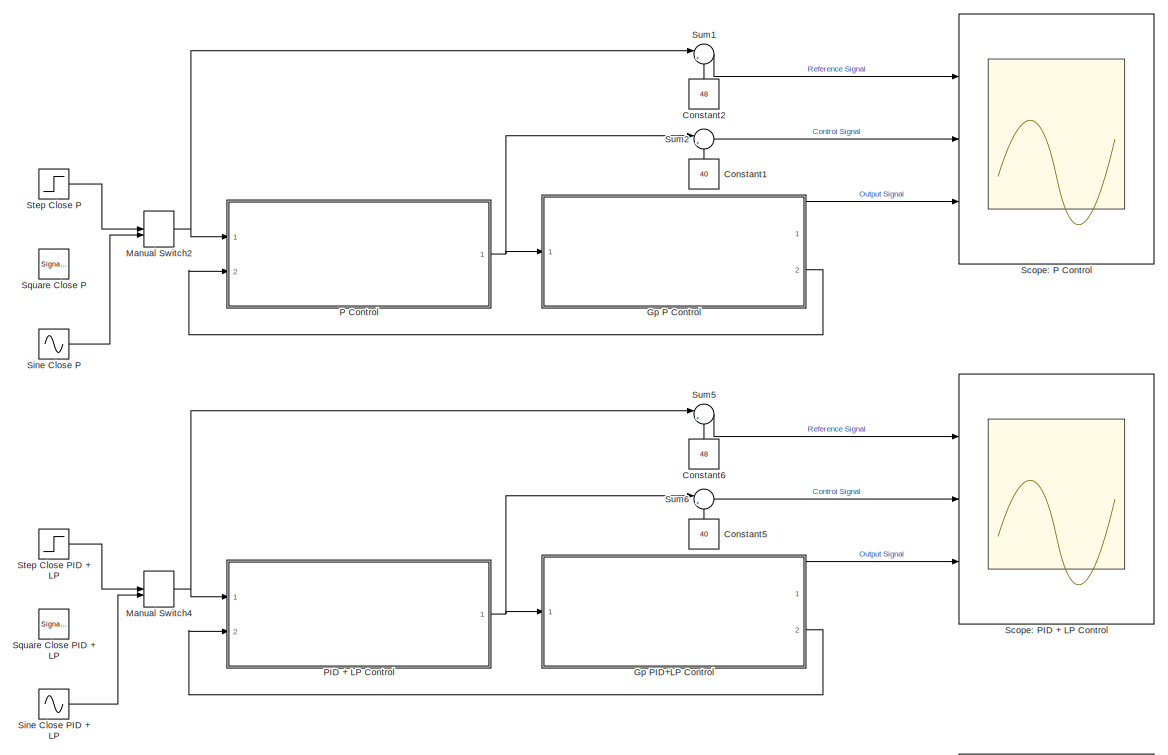
[diagram: root canvas - part 1/5, top left region]
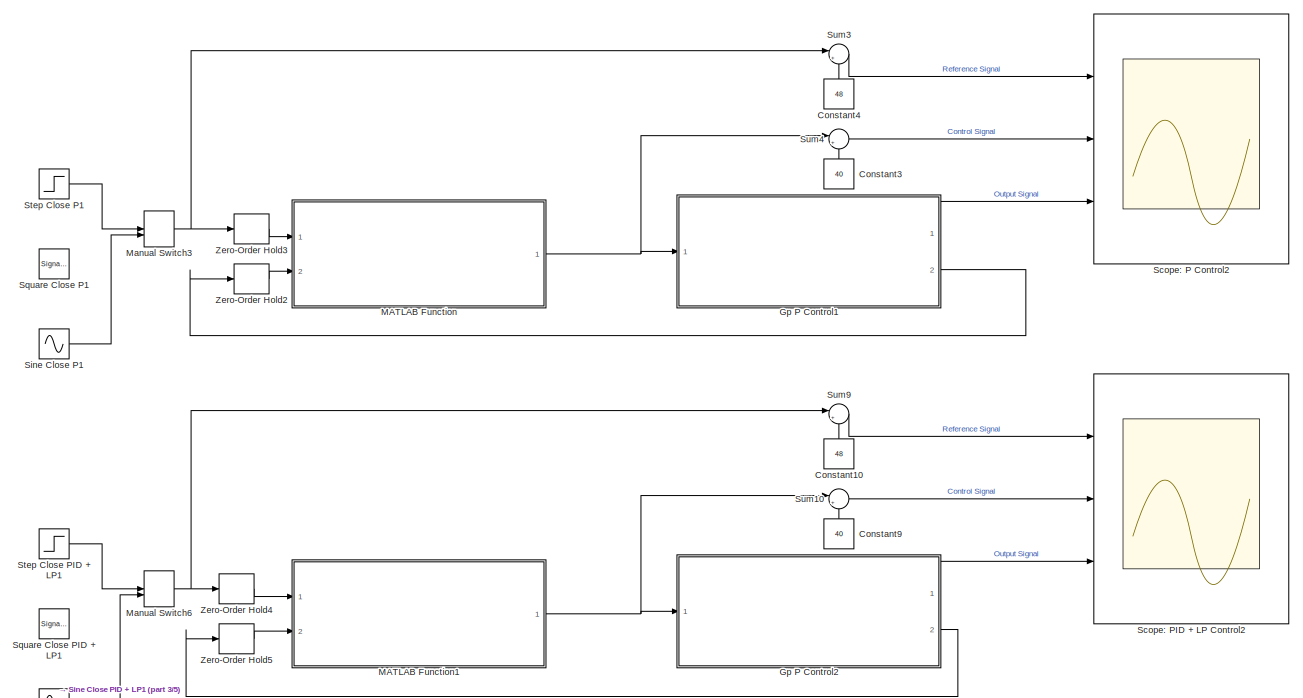
[diagram: root canvas - part 2/5, top right region]
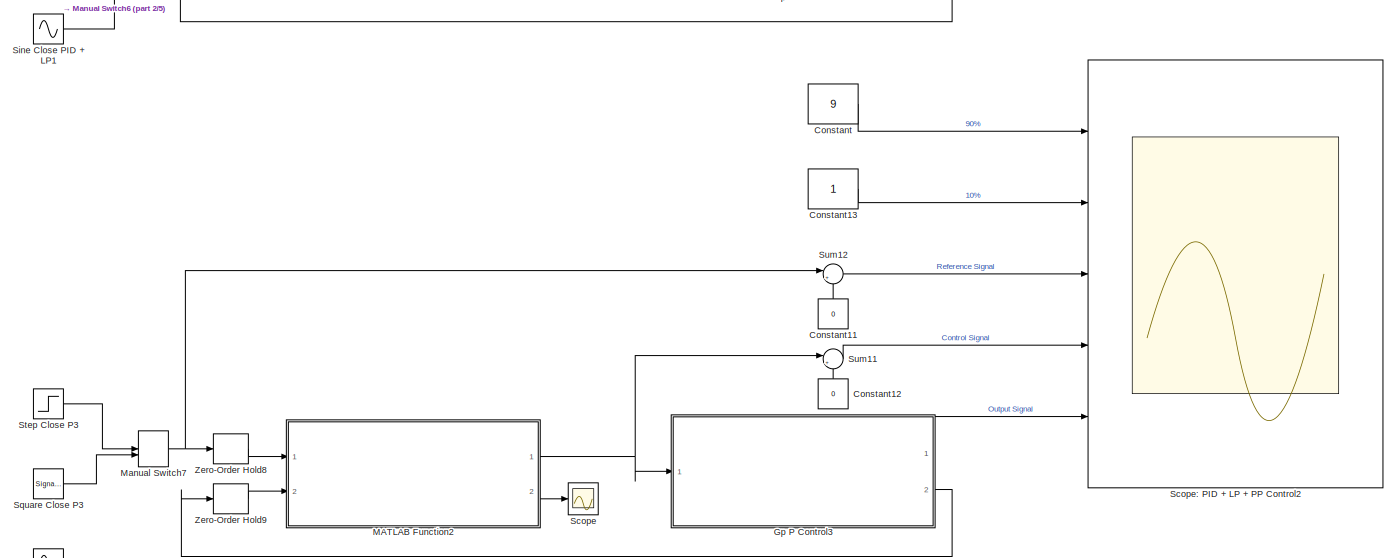
[diagram: root canvas - part 3/5, middle right region]
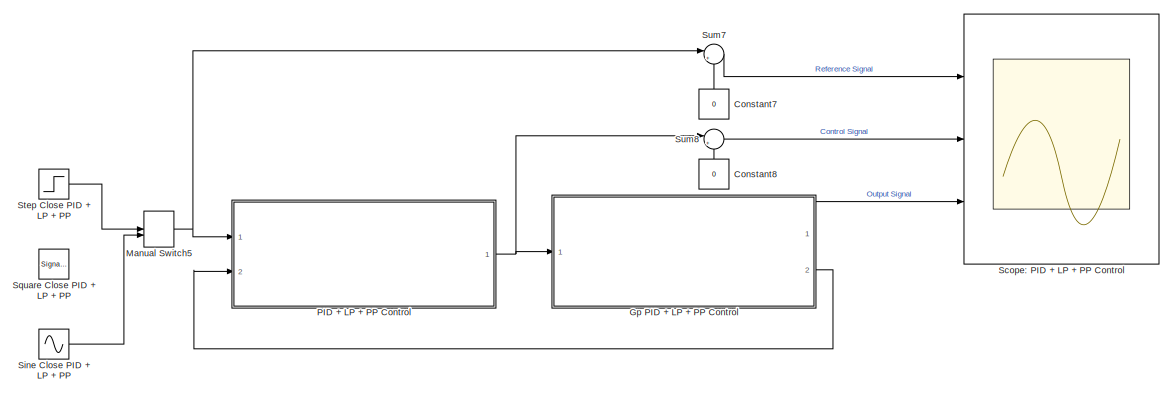
[diagram: root canvas - part 4/5, middle left region]
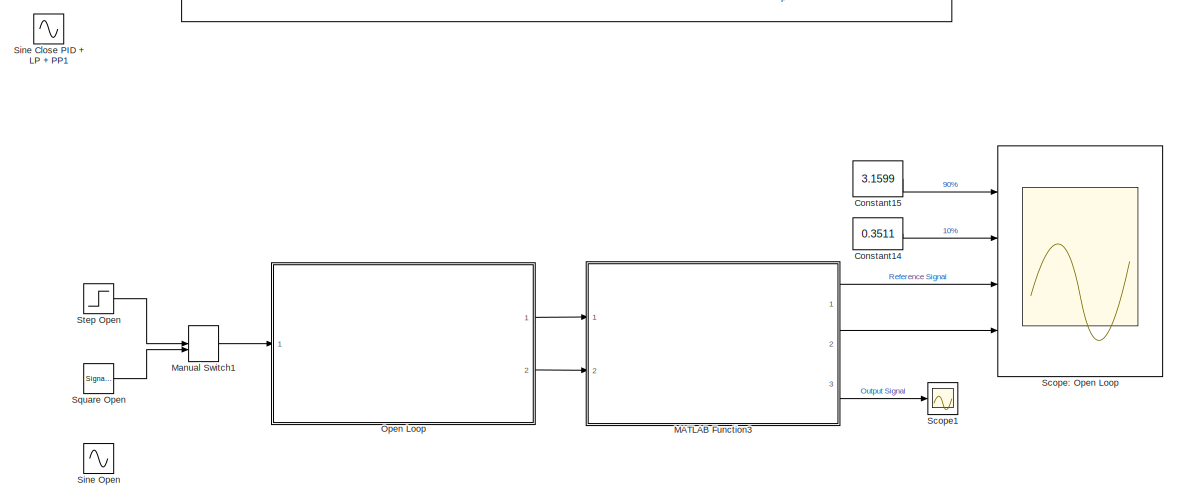
[diagram: root canvas - part 5/5, bottom right region]
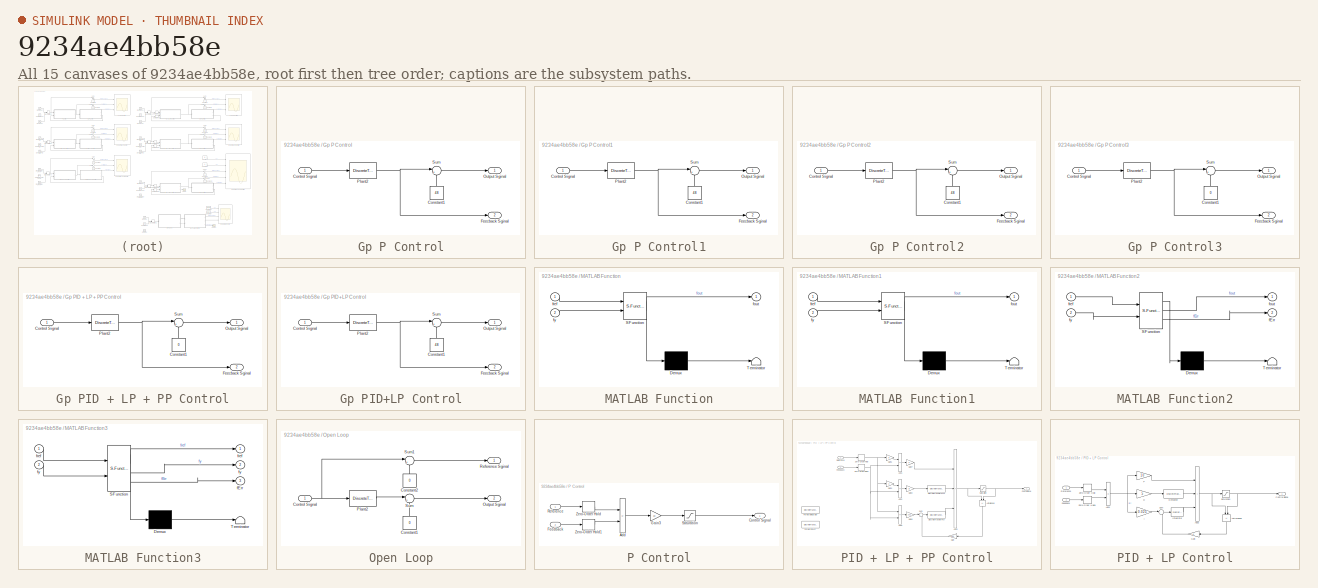
[diagram: thumbnail index - all 15 canvases of the model, root first then tree order]
MODEL slx_9234ae4bb58e
KIND model
CONFIG AbsTol = auto
CONFIG EnableMultiTasking = off
CONFIG FixedStep = auto
CONFIG MaxStep = auto
CONFIG MinStep = auto
CONFIG RelTol = 1e-3
CONFIG SampleTimeConstraint = Unconstrained
CONFIG SolverName = VariableStepAuto
CONFIG StartTime = 0.0
CONFIG StopTime = 3600
BLOCK [Constant] Constant
  Value = 9
BLOCK [Constant] Constant1
  NameLocation = right
  Value = 40
BLOCK [Constant] Constant10
  NameLocation = right
  Value = 48
BLOCK [Constant] Constant11
  NameLocation = right
  Value = 0
BLOCK [Constant] Constant12
  NameLocation = right
  Value = 0
BLOCK [Constant] Constant13
BLOCK [Constant] Constant14
  Value = 0.3511
BLOCK [Constant] Constant15
  Value = 3.1599
BLOCK [Constant] Constant2
  NameLocation = right
  Value = 48
BLOCK [Constant] Constant3
  NameLocation = right
  Value = 40
BLOCK [Constant] Constant4
  NameLocation = right
  Value = 48
BLOCK [Constant] Constant5
  NameLocation = right
  Value = 40
BLOCK [Constant] Constant6
  NameLocation = right
  Value = 48
BLOCK [Constant] Constant7
  NameLocation = right
  Value = 0
BLOCK [Constant] Constant8
  NameLocation = right
  Value = 0
BLOCK [Constant] Constant9
  NameLocation = right
  Value = 40
BLOCK [SubSystem] Gp P Control
  Ports = [1, 2]
  RequestExecContextInheritance = off
BLOCK [Constant] Gp P Control/Constant1
  NameLocation = right
  Value = 48
BLOCK [Inport] Gp P Control/Control Signal
  NameLocation = left
BLOCK [Outport] Gp P Control/Feecback Sginal
  NameLocation = right
  Port = 2
BLOCK [Outport] Gp P Control/Output Sginal
  NameLocation = right
BLOCK [DiscreteTransferFcn] Gp P Control/Plant2
  Denominator = A
  InputPortMap = u0
  Numerator = B
  Ports = [1, 1]
  SampleTime = 0.4
BLOCK [Sum] Gp P Control/Sum
  Inputs = |++
  Ports = [2, 1]
BLOCK [SubSystem] Gp P Control1
  Ports = [1, 2]
  RequestExecContextInheritance = off
BLOCK [Constant] Gp P Control1/Constant1
  NameLocation = right
  Value = 48
BLOCK [Inport] Gp P Control1/Control Signal
  NameLocation = left
BLOCK [Outport] Gp P Control1/Feecback Sginal
  NameLocation = right
  Port = 2
BLOCK [Outport] Gp P Control1/Output Sginal
  NameLocation = right
BLOCK [DiscreteTransferFcn] Gp P Control1/Plant2
  Denominator = A
  InputPortMap = u0
  Numerator = B
  Ports = [1, 1]
  SampleTime = 0.4
BLOCK [Sum] Gp P Control1/Sum
  Inputs = |++
  Ports = [2, 1]
BLOCK [SubSystem] Gp P Control2
  Ports = [1, 2]
  RequestExecContextInheritance = off
BLOCK [Constant] Gp P Control2/Constant1
  NameLocation = right
  Value = 48
BLOCK [Inport] Gp P Control2/Control Signal
  NameLocation = left
BLOCK [Outport] Gp P Control2/Feecback Sginal
  NameLocation = right
  Port = 2
BLOCK [Outport] Gp P Control2/Output Sginal
  NameLocation = right
BLOCK [DiscreteTransferFcn] Gp P Control2/Plant2
  Denominator = A
  InputPortMap = u0
  Numerator = B
  Ports = [1, 1]
  SampleTime = 0.4
BLOCK [Sum] Gp P Control2/Sum
  Inputs = |++
  Ports = [2, 1]
BLOCK [SubSystem] Gp P Control3
  Ports = [1, 2]
  RequestExecContextInheritance = off
BLOCK [Constant] Gp P Control3/Constant1
  NameLocation = right
  Value = 0
BLOCK [Inport] Gp P Control3/Control Signal
  NameLocation = left
BLOCK [Outport] Gp P Control3/Feecback Sginal
  NameLocation = right
  Port = 2
BLOCK [Outport] Gp P Control3/Output Sginal
  NameLocation = right
BLOCK [DiscreteTransferFcn] Gp P Control3/Plant2
  Denominator = A
  InputPortMap = u0
  Numerator = B
  Ports = [1, 1]
  SampleTime = 0.4
BLOCK [Sum] Gp P Control3/Sum
  Inputs = |++
  Ports = [2, 1]
BLOCK [SubSystem] Gp PID + LP + PP Control
  Ports = [1, 2]
  RequestExecContextInheritance = off
BLOCK [Constant] Gp PID + LP + PP Control/Constant1
  NameLocation = right
  Value = 0
BLOCK [Inport] Gp PID + LP + PP Control/Control Signal
  NameLocation = left
BLOCK [Outport] Gp PID + LP + PP Control/Feecback Sginal
  NameLocation = right
  Port = 2
BLOCK [Outport] Gp PID + LP + PP Control/Output Sginal
  NameLocation = right
BLOCK [DiscreteTransferFcn] Gp PID + LP + PP Control/Plant2
  Denominator = A
  InputPortMap = u0
  Numerator = B
  Ports = [1, 1]
  SampleTime = 0.4
BLOCK [Sum] Gp PID + LP + PP Control/Sum
  Inputs = |++
  Ports = [2, 1]
BLOCK [SubSystem] Gp PID+LP Control
  Ports = [1, 2]
  RequestExecContextInheritance = off
BLOCK [Constant] Gp PID+LP Control/Constant1
  NameLocation = right
  Value = 48
BLOCK [Inport] Gp PID+LP Control/Control Signal
  NameLocation = left
BLOCK [Outport] Gp PID+LP Control/Feecback Sginal
  NameLocation = right
  Port = 2
BLOCK [Outport] Gp PID+LP Control/Output Sginal
  NameLocation = right
BLOCK [DiscreteTransferFcn] Gp PID+LP Control/Plant2
  Denominator = A
  InputPortMap = u0
  Numerator = B
  Ports = [1, 1]
  SampleTime = 0.4
BLOCK [Sum] Gp PID+LP Control/Sum
  Inputs = |++
  Ports = [2, 1]
BLOCK [SubSystem] MATLAB Function
  ErrorFcn = Stateflow.Translate.translate
  PermitHierarchicalResolution = ExplicitOnly
  Ports = [2, 1]
  RequestExecContextInheritance = off
  SFBlockType = MATLAB Function
  TreatAsAtomicUnit = on
BLOCK [Demux] MATLAB Function/ Demux 
  Outputs = 1
  Ports = [1, 1]
BLOCK [S-Function] MATLAB Function/ SFunction 
  EnableBusSupport = on
  FunctionName = sf_sfun
  PortCounts = [2 2]
  Ports = [2, 2]
  SFcnIsStateOwnerBlock = off
  SFunctionDeploymentMode = off
  Tag = Stateflow S-Function 2
BLOCK [Terminator] MATLAB Function/ Terminator 
BLOCK [Outport] MATLAB Function/fout
BLOCK [Inport] MATLAB Function/fref
BLOCK [Inport] MATLAB Function/fy
  Port = 2
BLOCK [SubSystem] MATLAB Function1
  ErrorFcn = Stateflow.Translate.translate
  PermitHierarchicalResolution = ExplicitOnly
  Ports = [2, 1]
  RequestExecContextInheritance = off
  SFBlockType = MATLAB Function
  TreatAsAtomicUnit = on
BLOCK [Demux] MATLAB Function1/ Demux 
  Outputs = 1
  Ports = [1, 1]
BLOCK [S-Function] MATLAB Function1/ SFunction 
  EnableBusSupport = on
  FunctionName = sf_sfun
  PortCounts = [2 2]
  Ports = [2, 2]
  SFcnIsStateOwnerBlock = off
  SFunctionDeploymentMode = off
  Tag = Stateflow S-Function 1
BLOCK [Terminator] MATLAB Function1/ Terminator 
BLOCK [Outport] MATLAB Function1/fout
BLOCK [Inport] MATLAB Function1/fref
BLOCK [Inport] MATLAB Function1/fy
  Port = 2
BLOCK [SubSystem] MATLAB Function2
  ErrorFcn = Stateflow.Translate.translate
  PermitHierarchicalResolution = ExplicitOnly
  Ports = [2, 2]
  RequestExecContextInheritance = off
  SFBlockType = MATLAB Function
  TreatAsAtomicUnit = on
BLOCK [Demux] MATLAB Function2/ Demux 
  Outputs = 1
  Ports = [1, 1]
BLOCK [S-Function] MATLAB Function2/ SFunction 
  EnableBusSupport = on
  FunctionName = sf_sfun
  PortCounts = [2 3]
  Ports = [2, 3]
  SFcnIsStateOwnerBlock = off
  SFunctionDeploymentMode = off
  Tag = Stateflow S-Function 3
BLOCK [Terminator] MATLAB Function2/ Terminator 
BLOCK [Outport] MATLAB Function2/fErr
  Port = 2
BLOCK [Outport] MATLAB Function2/fout
BLOCK [Inport] MATLAB Function2/fref
BLOCK [Inport] MATLAB Function2/fy
  Port = 2
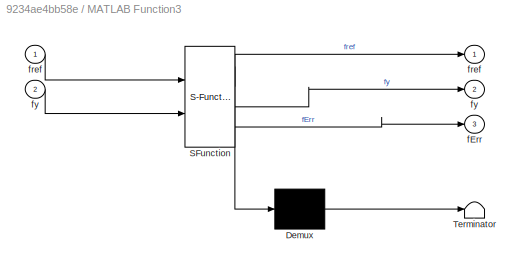
BLOCK [SubSystem] MATLAB Function3
  ErrorFcn = Stateflow.Translate.translate
  PermitHierarchicalResolution = ExplicitOnly
  Ports = [2, 3]
  RequestExecContextInheritance = off
  SFBlockType = MATLAB Function
  TreatAsAtomicUnit = on
BLOCK [Demux] MATLAB Function3/ Demux 
  Outputs = 1
  Ports = [1, 1]
BLOCK [S-Function] MATLAB Function3/ SFunction 
  EnableBusSupport = on
  FunctionName = sf_sfun
  PortCounts = [2 4]
  Ports = [2, 4]
  SFcnIsStateOwnerBlock = off
  SFunctionDeploymentMode = off
  Tag = Stateflow S-Function 4
BLOCK [Terminator] MATLAB Function3/ Terminator 
BLOCK [Outport] MATLAB Function3/fErr
  Port = 3
BLOCK [Outport] MATLAB Function3/fref
BLOCK [Inport] MATLAB Function3/fref 
BLOCK [Outport] MATLAB Function3/fy
  Port = 2
BLOCK [Inport] MATLAB Function3/fy 
  Port = 2
BLOCK [ManualSwitch] Manual Switch1
  CurrentSetting = 0
BLOCK [ManualSwitch] Manual Switch2
  CurrentSetting = 0
BLOCK [ManualSwitch] Manual Switch3
  CurrentSetting = 0
BLOCK [ManualSwitch] Manual Switch4
  CurrentSetting = 0
BLOCK [ManualSwitch] Manual Switch5
  CurrentSetting = 0
BLOCK [ManualSwitch] Manual Switch6
  CurrentSetting = 0
BLOCK [ManualSwitch] Manual Switch7
  CurrentSetting = 0
BLOCK [SubSystem] Open Loop
  Ports = [1, 2]
  RequestExecContextInheritance = off
BLOCK [Constant] Open Loop/Constant1
  NameLocation = right
  Value = 0
BLOCK [Constant] Open Loop/Constant2
  NameLocation = right
  Value = 0
BLOCK [Inport] Open Loop/Control Signal
  NameLocation = left
BLOCK [Outport] Open Loop/Output Sginal
  NameLocation = right
  Port = 2
BLOCK [DiscreteTransferFcn] Open Loop/Plant2
  Denominator = A
  InputPortMap = u0
  Numerator = B
  Ports = [1, 1]
  SampleTime = Ts
BLOCK [Outport] Open Loop/Reference Sginal
  NameLocation = right
BLOCK [Sum] Open Loop/Sum
  Inputs = |++
  Ports = [2, 1]
BLOCK [Sum] Open Loop/Sum1
  Inputs = |++
  Ports = [2, 1]
BLOCK [SubSystem] P Control
  Ports = [2, 1]
  RequestExecContextInheritance = off
BLOCK [Sum] P Control/Add
  IconShape = rectangular
  Inputs = +-
  Ports = [2, 1]
BLOCK [Outport] P Control/Control Signal
  NameLocation = right
BLOCK [Inport] P Control/Feedback
  NameLocation = left
  Port = 2
BLOCK [Gain] P Control/Gain3
  Gain = 10
BLOCK [Inport] P Control/Reference
  NameLocation = left
BLOCK [Saturate] P Control/Saturation
  LowerLimit = -40
  UpperLimit = 60
BLOCK [ZeroOrderHold] P Control/Zero-Order Hold
BLOCK [ZeroOrderHold] P Control/Zero-Order Hold1
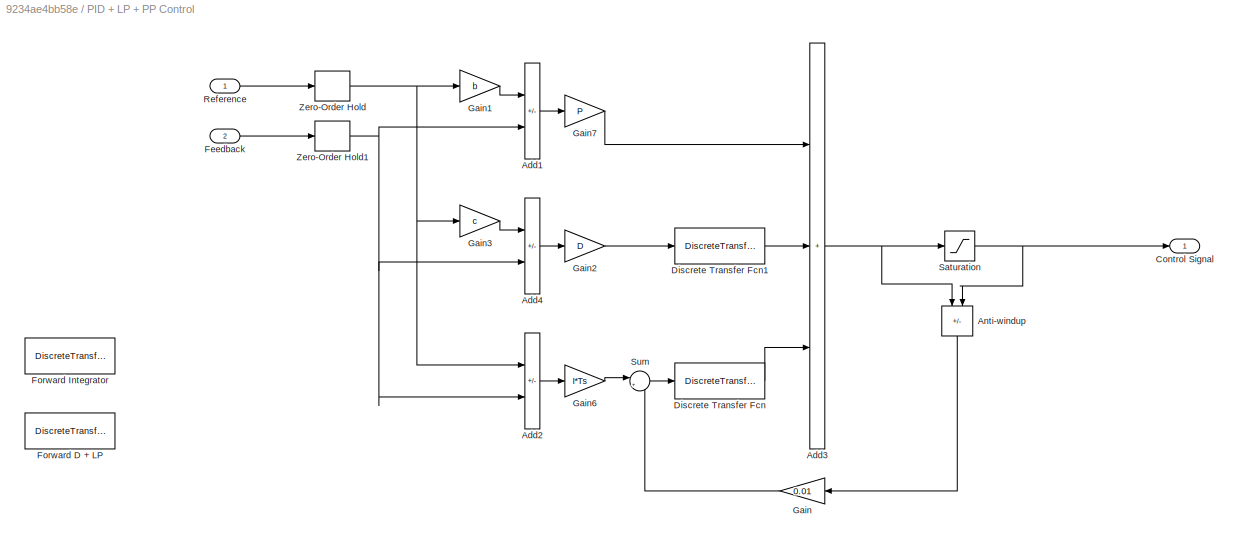
BLOCK [SubSystem] PID + LP + PP Control
  Ports = [2, 1]
  RequestExecContextInheritance = off
BLOCK [Sum] PID + LP + PP Control/Add1
  IconShape = rectangular
  Inputs = +-
  Ports = [2, 1]
BLOCK [Sum] PID + LP + PP Control/Add2
  IconShape = rectangular
  Inputs = +-
  Ports = [2, 1]
BLOCK [Sum] PID + LP + PP Control/Add3
  IconShape = rectangular
  Inputs = +++
  Ports = [3, 1]
BLOCK [Sum] PID + LP + PP Control/Add4
  IconShape = rectangular
  Inputs = +-
  Ports = [2, 1]
BLOCK [Sum] PID + LP + PP Control/Anti-windup
  IconShape = rectangular
  Inputs = -+
  NameLocation = right
  Ports = [2, 1]
BLOCK [Outport] PID + LP + PP Control/Control Signal
  NameLocation = right
BLOCK [DiscreteTransferFcn] PID + LP + PP Control/Discrete Transfer Fcn
  Denominator = [1 -1]
  InputPortMap = u0
  Numerator = [1 0]
  Ports = [1, 1]
  SampleTime = Ts
BLOCK [DiscreteTransferFcn] PID + LP + PP Control/Discrete Transfer Fcn1
  Denominator = [1+N -1]
  InputPortMap = u0
  Numerator = [N -N]
  Ports = [1, 1]
  SampleTime = Ts
BLOCK [Inport] PID + LP + PP Control/Feedback
  NameLocation = left
  Port = 2
BLOCK [DiscreteTransferFcn] PID + LP + PP Control/Forward D + LP
  Denominator = [1 N*Ts-1]
  InputPortMap = u0
  Numerator = [N -N]
  Ports = [1, 1]
  SampleTime = Ts
BLOCK [DiscreteTransferFcn] PID + LP + PP Control/Forward Integrator
  Denominator = [1 -1]
  InputPortMap = u0
  Ports = [1, 1]
  SampleTime = Ts
BLOCK [Gain] PID + LP + PP Control/Gain
  Gain = 0.01
BLOCK [Gain] PID + LP + PP Control/Gain1
  Gain = b
BLOCK [Gain] PID + LP + PP Control/Gain2
  Gain = D
BLOCK [Gain] PID + LP + PP Control/Gain3
  Gain = c
BLOCK [Gain] PID + LP + PP Control/Gain6
  Gain = I*Ts
BLOCK [Gain] PID + LP + PP Control/Gain7
  Gain = P
BLOCK [Inport] PID + LP + PP Control/Reference
  NameLocation = left
BLOCK [Saturate] PID + LP + PP Control/Saturation
  LowerLimit = -40
  UpperLimit = 60
BLOCK [Sum] PID + LP + PP Control/Sum
  Inputs = |++
  Ports = [2, 1]
BLOCK [ZeroOrderHold] PID + LP + PP Control/Zero-Order Hold
BLOCK [ZeroOrderHold] PID + LP + PP Control/Zero-Order Hold1
BLOCK [SubSystem] PID + LP Control
  Ports = [2, 1]
  RequestExecContextInheritance = off
BLOCK [Sum] PID + LP Control/Add1
  IconShape = rectangular
  Inputs = +-
  Ports = [2, 1]
BLOCK [Sum] PID + LP Control/Add2
  IconShape = rectangular
  Inputs = +++
  Ports = [3, 1]
BLOCK [Sum] PID + LP Control/Anti-windup
  IconShape = rectangular
  Inputs = -+
  NameLocation = right
  Ports = [2, 1]
BLOCK [Outport] PID + LP Control/Control Signal
  NameLocation = right
BLOCK [Gain] PID + LP Control/D
  Gain = 5
  NameLocation = top
BLOCK [DiscreteTransferFcn] PID + LP Control/Derivative
  Denominator = [1 0.6266]
  InputPortMap = u0
  Numerator = [1 -1]
  Ports = [1, 1]
  SampleTime = Ts
BLOCK [Inport] PID + LP Control/Feedback
  NameLocation = left
  Port = 2
BLOCK [Gain] PID + LP Control/Gain
BLOCK [Gain] PID + LP Control/I
  Gain = 0.025
  NameLocation = top
BLOCK [DiscreteTransferFcn] PID + LP Control/Integrator
  Denominator = [1 -1]
  InputPortMap = u0
  Numerator = [1 0]
  Ports = [1, 1]
  SampleTime = Ts
BLOCK [Gain] PID + LP Control/P
  Gain = 10
  NameLocation = top
BLOCK [Inport] PID + LP Control/Reference
  NameLocation = left
BLOCK [Saturate] PID + LP Control/Saturation
  LowerLimit = -40
  UpperLimit = 60
BLOCK [Sum] PID + LP Control/Sum
  Inputs = |++
  Ports = [2, 1]
BLOCK [ZeroOrderHold] PID + LP Control/Zero-Order Hold
BLOCK [ZeroOrderHold] PID + LP Control/Zero-Order Hold1
BLOCK [Scope] Scope
  Floating = off
  NumInputPorts = 1
  Ports = [1]
  ScopeSpecificationString = Simulink.scopes.TimeScopeBlockCfg('CurrentConfiguration', extmgr.ConfigurationSet(extmgr.Configuration('Core','General UI',true),extmgr.Configuration('Core','Source UI',true),extmgr.Configuration('Sources','WiredSimulink',true,'DataLoggingVariableName','ARMAX_Err','DataLogging',true,'DataLoggingSaveFormat','StructureWithTime'),extmgr.Configuration('Visuals','Time Domain',true,'SerializedDisplays',...<+1448ch>
BLOCK [Scope] Scope1
  Floating = off
  NumInputPorts = 1
  Ports = [1]
  ScopeSpecificationString = Simulink.scopes.TimeScopeBlockCfg('CurrentConfiguration', extmgr.ConfigurationSet(extmgr.Configuration('Core','General UI',true),extmgr.Configuration('Core','Source UI',true),extmgr.Configuration('Sources','WiredSimulink',true,'DataLoggingVariableName','ScopeData1'),extmgr.Configuration('Visuals','Time Domain',true,'SerializedDisplays',{struct('MinYLimReal','-16.88903','MaxYLimReal','16.88904','YL...<+1378ch>
BLOCK [Scope] Scope: Open Loop
  Floating = off
  NumInputPorts = 4
  Ports = [4]
  ScopeSpecificationString = Simulink.scopes.TimeScopeBlockCfg('CurrentConfiguration', extmgr.ConfigurationSet(extmgr.Configuration('Core','General UI',true),extmgr.Configuration('Core','Source UI',true),extmgr.Configuration('Sources','WiredSimulink',true,'DataLoggingVariableName','ScopeData1'),extmgr.Configuration('Visuals','Time Domain',true,'SerializedDisplays',{struct('MinYLimReal','-12.5','MaxYLimReal','12.5','YLabelReal...<+1555ch>
BLOCK [Scope] Scope: P Control
  Floating = off
  NumInputPorts = 3
  Ports = [3]
  ScopeSpecificationString = Simulink.scopes.TimeScopeBlockCfg('CurrentConfiguration', extmgr.ConfigurationSet(extmgr.Configuration('Core','General UI',true),extmgr.Configuration('Core','Source UI',true),extmgr.Configuration('Sources','WiredSimulink',true,'DataLoggingVariableName','ScopeData2'),extmgr.Configuration('Visuals','Time Domain',true,'SerializedDisplays',{struct('MinYLimReal','-10.79553','MaxYLimReal','97.1598','YLa...<+1549ch>
BLOCK [Scope] Scope: P Control2
  Floating = off
  NumInputPorts = 3
  Ports = [3]
  ScopeSpecificationString = Simulink.scopes.TimeScopeBlockCfg('CurrentConfiguration', extmgr.ConfigurationSet(extmgr.Configuration('Core','General UI',true),extmgr.Configuration('Core','Source UI',true),extmgr.Configuration('Sources','WiredSimulink',true,'DataLoggingVariableName','ScopeData1'),extmgr.Configuration('Visuals','Time Domain',true,'SerializedDisplays',{struct('MinYLimReal','-12.5','MaxYLimReal','112.5','YLabelRea...<+1534ch>
BLOCK [Scope] Scope: PID + LP + PP  Control2
  Floating = off
  NumInputPorts = 5
  Ports = [5]
  ScopeSpecificationString = Simulink.scopes.TimeScopeBlockCfg('CurrentConfiguration', extmgr.ConfigurationSet(extmgr.Configuration('Core','General UI',true,'FigureColor',[1 1 1]),extmgr.Configuration('Core','Source UI',true),extmgr.Configuration('Sources','WiredSimulink',true,'DataLoggingVariableName','ARMAX_Error','DataLogging',true,'DataLoggingSaveFormat','StructureWithTime'),extmgr.Configuration('Visuals','Time Domain',tr...<+2163ch>
BLOCK [Scope] Scope: PID + LP + PP Control
  Floating = off
  NumInputPorts = 3
  Ports = [3]
  ScopeSpecificationString = Simulink.scopes.TimeScopeBlockCfg('CurrentConfiguration', extmgr.ConfigurationSet(extmgr.Configuration('Core','General UI',true),extmgr.Configuration('Core','Source UI',true),extmgr.Configuration('Sources','WiredSimulink',true,'DataLoggingVariableName','ScopeData4'),extmgr.Configuration('Visuals','Time Domain',true,'SerializedDisplays',{struct('MinYLimReal','-36.9367','MaxYLimReal','36.97521','YLa...<+1552ch>
BLOCK [Scope] Scope: PID + LP Control
  Floating = off
  NumInputPorts = 3
  Ports = [3]
  ScopeSpecificationString = Simulink.scopes.TimeScopeBlockCfg('CurrentConfiguration', extmgr.ConfigurationSet(extmgr.Configuration('Core','General UI',true),extmgr.Configuration('Core','Source UI',true),extmgr.Configuration('Sources','WiredSimulink',true),extmgr.Configuration('Visuals','Time Domain',true,'SerializedDisplays',{struct('MinYLimReal','-12.5','MaxYLimReal','112.5','YLabelReal','','MinYLimMag','0.00000','MaxYLimMa...<+1495ch>
BLOCK [Scope] Scope: PID + LP Control2
  Floating = off
  NumInputPorts = 3
  Ports = [3]
  ScopeSpecificationString = Simulink.scopes.TimeScopeBlockCfg('CurrentConfiguration', extmgr.ConfigurationSet(extmgr.Configuration('Core','General UI',true),extmgr.Configuration('Core','Source UI',true),extmgr.Configuration('Sources','WiredSimulink',true,'DataLoggingVariableName','ScopeData2'),extmgr.Configuration('Visuals','Time Domain',true,'SerializedDisplays',{struct('MinYLimReal','-12.5','MaxYLimReal','112.5','YLabelRea...<+1534ch>
BLOCK [Sin] Sine Close P
  Amplitude = 20
  Frequency = 0.004
  Ports = [0, 1]
  SampleTime = 0
BLOCK [Sin] Sine Close P1
  Amplitude = 20
  Frequency = 0.004
  Ports = [0, 1]
  SampleTime = 0
BLOCK [Sin] Sine Close PID + LP
  Amplitude = 20
  Frequency = 0.007
  Ports = [0, 1]
  SampleTime = 0
BLOCK [Sin] Sine Close PID + LP + PP
  Amplitude = 10
  Frequency = 0.004
  Ports = [0, 1]
  SampleTime = 0
BLOCK [Sin] Sine Close PID + LP + PP1
  Amplitude = 10
  Frequency = 1/1800*6.28
  Ports = [0, 1]
  SampleTime = 0
BLOCK [Sin] Sine Close PID + LP1
  Amplitude = 20
  Frequency = 0.007
  Ports = [0, 1]
  SampleTime = 0
BLOCK [Sin] Sine Open
  Amplitude = 10
  Frequency = 1/1800*6.28
  Ports = [0, 1]
  SampleTime = 0
BLOCK [SignalGenerator] Square Close P
  Amplitude = 20
  Frequency = 1/900
  Ports = [0, 1]
  WaveForm = square
BLOCK [SignalGenerator] Square Close P1
  Amplitude = 20
  Frequency = 1/900
  Ports = [0, 1]
  WaveForm = square
BLOCK [SignalGenerator] Square Close P3
  Amplitude = 10
  Frequency = 1/1800
  Ports = [0, 1]
  WaveForm = square
BLOCK [SignalGenerator] Square Close PID + LP
  Amplitude = 20
  Frequency = 1/900
  Ports = [0, 1]
  WaveForm = square
BLOCK [SignalGenerator] Square Close PID + LP + PP
  Amplitude = 10
  Frequency = 1/1200
  Ports = [0, 1]
  WaveForm = square
BLOCK [SignalGenerator] Square Close PID + LP1
  Amplitude = 20
  Frequency = 1/900
  Ports = [0, 1]
  WaveForm = square
BLOCK [SignalGenerator] Square Open
  Amplitude = 10
  Frequency = 1/1800
  Ports = [0, 1]
  WaveForm = square
BLOCK [Step] Step Close P
  After = 20
  SampleTime = Ts
BLOCK [Step] Step Close P1
  After = 20
  SampleTime = Ts
BLOCK [Step] Step Close P3
  After = 10
BLOCK [Step] Step Close PID + LP
  After = 20
  SampleTime = Ts
BLOCK [Step] Step Close PID + LP + PP
  After = 20
  SampleTime = 0.4
BLOCK [Step] Step Close PID + LP1
  After = 20
  SampleTime = Ts
BLOCK [Step] Step Open
  After = 10
BLOCK [Sum] Sum1
  Inputs = |++
  Ports = [2, 1]
BLOCK [Sum] Sum10
  Inputs = |++
  Ports = [2, 1]
BLOCK [Sum] Sum11
  Inputs = |++
  Ports = [2, 1]
BLOCK [Sum] Sum12
  Inputs = |++
  Ports = [2, 1]
BLOCK [Sum] Sum2
  Inputs = |++
  Ports = [2, 1]
BLOCK [Sum] Sum3
  Inputs = |++
  Ports = [2, 1]
BLOCK [Sum] Sum4
  Inputs = |++
  Ports = [2, 1]
BLOCK [Sum] Sum5
  Inputs = |++
  Ports = [2, 1]
BLOCK [Sum] Sum6
  Inputs = |++
  Ports = [2, 1]
BLOCK [Sum] Sum7
  Inputs = |++
  Ports = [2, 1]
BLOCK [Sum] Sum8
  Inputs = |++
  Ports = [2, 1]
BLOCK [Sum] Sum9
  Inputs = |++
  Ports = [2, 1]
BLOCK [ZeroOrderHold] Zero-Order Hold2
BLOCK [ZeroOrderHold] Zero-Order Hold3
BLOCK [ZeroOrderHold] Zero-Order Hold4
BLOCK [ZeroOrderHold] Zero-Order Hold5
BLOCK [ZeroOrderHold] Zero-Order Hold8
BLOCK [ZeroOrderHold] Zero-Order Hold9
LINE Constant10:1 -> Sum9:2
LINE Constant11:1 -> Sum12:2
LINE Constant12:1 -> Sum11:2
LINE Constant13:1 -> Scope: PID + LP + PP  Control2:2
LINE Constant14:1 -> Scope: Open Loop:2
LINE Constant15:1 -> Scope: Open Loop:1
LINE Constant1:1 -> Sum2:2
LINE Constant2:1 -> Sum1:2
LINE Constant3:1 -> Sum4:2
LINE Constant4:1 -> Sum3:2
LINE Constant5:1 -> Sum6:2
LINE Constant6:1 -> Sum5:2
LINE Constant7:1 -> Sum7:2
LINE Constant8:1 -> Sum8:2
LINE Constant9:1 -> Sum10:2
LINE Constant:1 -> Scope: PID + LP + PP  Control2:1
LINE Gp P Control/Constant1:1 -> Gp P Control/Sum:2
LINE Gp P Control/Control Signal:1 -> Gp P Control/Plant2:1
NET Gp P Control/Plant2:1 -> Gp P Control/Feecback Sginal:1, Gp P Control/Sum:1
LINE Gp P Control/Sum:1 -> Gp P Control/Output Sginal:1
LINE Gp P Control1/Constant1:1 -> Gp P Control1/Sum:2
LINE Gp P Control1/Control Signal:1 -> Gp P Control1/Plant2:1
NET Gp P Control1/Plant2:1 -> Gp P Control1/Feecback Sginal:1, Gp P Control1/Sum:1
LINE Gp P Control1/Sum:1 -> Gp P Control1/Output Sginal:1
LINE Gp P Control1:1 -> Scope: P Control2:3
LINE Gp P Control1:2 -> Zero-Order Hold2:1
LINE Gp P Control2/Constant1:1 -> Gp P Control2/Sum:2
LINE Gp P Control2/Control Signal:1 -> Gp P Control2/Plant2:1
NET Gp P Control2/Plant2:1 -> Gp P Control2/Feecback Sginal:1, Gp P Control2/Sum:1
LINE Gp P Control2/Sum:1 -> Gp P Control2/Output Sginal:1
LINE Gp P Control2:1 -> Scope: PID + LP Control2:3
LINE Gp P Control2:2 -> Zero-Order Hold5:1
LINE Gp P Control3/Constant1:1 -> Gp P Control3/Sum:2
LINE Gp P Control3/Control Signal:1 -> Gp P Control3/Plant2:1
NET Gp P Control3/Plant2:1 -> Gp P Control3/Feecback Sginal:1, Gp P Control3/Sum:1
LINE Gp P Control3/Sum:1 -> Gp P Control3/Output Sginal:1
LINE Gp P Control3:1 -> Scope: PID + LP + PP  Control2:5
LINE Gp P Control3:2 -> Zero-Order Hold9:1
LINE Gp P Control:1 -> Scope: P Control:3
LINE Gp P Control:2 -> P Control:2
LINE Gp PID + LP + PP Control/Constant1:1 -> Gp PID + LP + PP Control/Sum:2
LINE Gp PID + LP + PP Control/Control Signal:1 -> Gp PID + LP + PP Control/Plant2:1
NET Gp PID + LP + PP Control/Plant2:1 -> Gp PID + LP + PP Control/Feecback Sginal:1, Gp PID + LP + PP Control/Sum:1
LINE Gp PID + LP + PP Control/Sum:1 -> Gp PID + LP + PP Control/Output Sginal:1
LINE Gp PID + LP + PP Control:1 -> Scope: PID + LP + PP Control:3
LINE Gp PID + LP + PP Control:2 -> PID + LP + PP Control:2
LINE Gp PID+LP Control/Constant1:1 -> Gp PID+LP Control/Sum:2
LINE Gp PID+LP Control/Control Signal:1 -> Gp PID+LP Control/Plant2:1
NET Gp PID+LP Control/Plant2:1 -> Gp PID+LP Control/Feecback Sginal:1, Gp PID+LP Control/Sum:1
LINE Gp PID+LP Control/Sum:1 -> Gp PID+LP Control/Output Sginal:1
LINE Gp PID+LP Control:1 -> Scope: PID + LP Control:3
LINE Gp PID+LP Control:2 -> PID + LP Control:2
NET MATLAB Function1:1 -> Gp P Control2:1, Sum10:1
NET MATLAB Function2:1 -> Gp P Control3:1, Sum11:1
LINE MATLAB Function2:2 -> Scope:1
LINE MATLAB Function3:1 -> Scope: Open Loop:3
LINE MATLAB Function3:2 -> Scope: Open Loop:4
LINE MATLAB Function3:3 -> Scope1:1
NET MATLAB Function:1 -> Gp P Control1:1, Sum4:1
LINE Manual Switch1:1 -> Open Loop:1
NET Manual Switch2:1 -> P Control:1, Sum1:1
NET Manual Switch3:1 -> Sum3:1, Zero-Order Hold3:1
NET Manual Switch4:1 -> PID + LP Control:1, Sum5:1
NET Manual Switch5:1 -> PID + LP + PP Control:1, Sum7:1
NET Manual Switch6:1 -> Sum9:1, Zero-Order Hold4:1
NET Manual Switch7:1 -> Sum12:1, Zero-Order Hold8:1
LINE Open Loop/Constant1:1 -> Open Loop/Sum:2
LINE Open Loop/Constant2:1 -> Open Loop/Sum1:2
NET Open Loop/Control Signal:1 -> Open Loop/Plant2:1, Open Loop/Sum1:1
LINE Open Loop/Plant2:1 -> Open Loop/Sum:1
LINE Open Loop/Sum1:1 -> Open Loop/Reference Sginal:1
LINE Open Loop/Sum:1 -> Open Loop/Output Sginal:1
LINE Open Loop:1 -> MATLAB Function3:1
LINE Open Loop:2 -> MATLAB Function3:2
LINE P Control/Add:1 -> P Control/Gain3:1
LINE P Control/Feedback:1 -> P Control/Zero-Order Hold1:1
LINE P Control/Gain3:1 -> P Control/Saturation:1
LINE P Control/Reference:1 -> P Control/Zero-Order Hold:1
LINE P Control/Saturation:1 -> P Control/Control Signal:1
LINE P Control/Zero-Order Hold1:1 -> P Control/Add:2
LINE P Control/Zero-Order Hold:1 -> P Control/Add:1
NET P Control:1 -> Gp P Control:1, Sum2:1
LINE PID + LP + PP Control/Add1:1 -> PID + LP + PP Control/Gain7:1
LINE PID + LP + PP Control/Add2:1 -> PID + LP + PP Control/Gain6:1
NET PID + LP + PP Control/Add3:1 -> PID + LP + PP Control/Anti-windup:1, PID + LP + PP Control/Saturation:1
LINE PID + LP + PP Control/Add4:1 -> PID + LP + PP Control/Gain2:1
LINE PID + LP + PP Control/Anti-windup:1 -> PID + LP + PP Control/Gain:1
LINE PID + LP + PP Control/Discrete Transfer Fcn1:1 -> PID + LP + PP Control/Add3:2
LINE PID + LP + PP Control/Discrete Transfer Fcn:1 -> PID + LP + PP Control/Add3:3
LINE PID + LP + PP Control/Feedback:1 -> PID + LP + PP Control/Zero-Order Hold1:1
LINE PID + LP + PP Control/Gain1:1 -> PID + LP + PP Control/Add1:1
LINE PID + LP + PP Control/Gain2:1 -> PID + LP + PP Control/Discrete Transfer Fcn1:1
LINE PID + LP + PP Control/Gain3:1 -> PID + LP + PP Control/Add4:1
LINE PID + LP + PP Control/Gain6:1 -> PID + LP + PP Control/Sum:1
LINE PID + LP + PP Control/Gain7:1 -> PID + LP + PP Control/Add3:1
LINE PID + LP + PP Control/Gain:1 -> PID + LP + PP Control/Sum:2
LINE PID + LP + PP Control/Reference:1 -> PID + LP + PP Control/Zero-Order Hold:1
NET PID + LP + PP Control/Saturation:1 -> PID + LP + PP Control/Anti-windup:2, PID + LP + PP Control/Control Signal:1
LINE PID + LP + PP Control/Sum:1 -> PID + LP + PP Control/Discrete Transfer Fcn:1
NET PID + LP + PP Control/Zero-Order Hold1:1 -> PID + LP + PP Control/Add1:2, PID + LP + PP Control/Add2:2, PID + LP + PP Control/Add4:2
NET PID + LP + PP Control/Zero-Order Hold:1 -> PID + LP + PP Control/Add2:1, PID + LP + PP Control/Gain1:1, PID + LP + PP Control/Gain3:1
NET PID + LP + PP Control:1 -> Gp PID + LP + PP Control:1, Sum8:1
NET PID + LP Control/Add1:1 -> PID + LP Control/D:1, PID + LP Control/I:1, PID + LP Control/P:1
NET PID + LP Control/Add2:1 -> PID + LP Control/Anti-windup:1, PID + LP Control/Saturation:1
LINE PID + LP Control/Anti-windup:1 -> PID + LP Control/Gain:1
LINE PID + LP Control/D:1 -> PID + LP Control/Derivative:1
LINE PID + LP Control/Derivative:1 -> PID + LP Control/Add2:2
LINE PID + LP Control/Feedback:1 -> PID + LP Control/Zero-Order Hold1:1
LINE PID + LP Control/Gain:1 -> PID + LP Control/Sum:2
LINE PID + LP Control/I:1 -> PID + LP Control/Sum:1
LINE PID + LP Control/Integrator:1 -> PID + LP Control/Add2:3
LINE PID + LP Control/P:1 -> PID + LP Control/Add2:1
LINE PID + LP Control/Reference:1 -> PID + LP Control/Zero-Order Hold:1
NET PID + LP Control/Saturation:1 -> PID + LP Control/Anti-windup:2, PID + LP Control/Control Signal:1
LINE PID + LP Control/Sum:1 -> PID + LP Control/Integrator:1
LINE PID + LP Control/Zero-Order Hold1:1 -> PID + LP Control/Add1:2
LINE PID + LP Control/Zero-Order Hold:1 -> PID + LP Control/Add1:1
NET PID + LP Control:1 -> Gp PID+LP Control:1, Sum6:1
LINE Sine Close P1:1 -> Manual Switch3:2
LINE Sine Close P:1 -> Manual Switch2:2
LINE Sine Close PID + LP + PP:1 -> Manual Switch5:2
LINE Sine Close PID + LP1:1 -> Manual Switch6:2
LINE Sine Close PID + LP:1 -> Manual Switch4:2
LINE Square Close P3:1 -> Manual Switch7:2
LINE Square Open:1 -> Manual Switch1:2
LINE Step Close P1:1 -> Manual Switch3:1
LINE Step Close P3:1 -> Manual Switch7:1
LINE Step Close P:1 -> Manual Switch2:1
LINE Step Close PID + LP + PP:1 -> Manual Switch5:1
LINE Step Close PID + LP1:1 -> Manual Switch6:1
LINE Step Close PID + LP:1 -> Manual Switch4:1
LINE Step Open:1 -> Manual Switch1:1
LINE Sum10:1 -> Scope: PID + LP Control2:2
LINE Sum11:1 -> Scope: PID + LP + PP  Control2:4
LINE Sum12:1 -> Scope: PID + LP + PP  Control2:3
LINE Sum1:1 -> Scope: P Control:1
LINE Sum2:1 -> Scope: P Control:2
LINE Sum3:1 -> Scope: P Control2:1
LINE Sum4:1 -> Scope: P Control2:2
LINE Sum5:1 -> Scope: PID + LP Control:1
LINE Sum6:1 -> Scope: PID + LP Control:2
LINE Sum7:1 -> Scope: PID + LP + PP Control:1
LINE Sum8:1 -> Scope: PID + LP + PP Control:2
LINE Sum9:1 -> Scope: PID + LP Control2:1
LINE Zero-Order Hold2:1 -> MATLAB Function:2
LINE Zero-Order Hold3:1 -> MATLAB Function:1
LINE Zero-Order Hold4:1 -> MATLAB Function1:1
LINE Zero-Order Hold5:1 -> MATLAB Function1:2
LINE Zero-Order Hold8:1 -> MATLAB Function2:1
LINE Zero-Order Hold9:1 -> MATLAB Function2:2
note: NET lines group one-source signal fan-out (src -> all destinations, sorted); 1:1 wires keep LINE
CHART MATLAB Function1 states=1 transitions=1
  STATE_LABEL 'eML_blk_kernel()'
  STATE_LABEL 'SCRIPT:\nfunction fout = fcn(fref, fy)\n%%%%%%%%%%%%%%%%%%%%%%%%%%%%%%%%%%%%%%%%%%%%%%%%%%%%%%%\n% PID + LP for ARMAX\n% Input : fref - reference signal\n%         fy   - feedback signal\n% Output: fout - control signal\n%%%%%%%%%%%%%%%%%%%%%%%%%%%%%%%%%%%%%%%%%%%%%%%%%%%%%%%\n% Variable Initialisation\npersistent fD_prev fI_prev fIA_prev fErr_prev fant;\nTs = 1;    % Sampling time\nP = 10;\nD = 5;\nI = 0.025;...<+590ch>'
CHART MATLAB Function states=1 transitions=1
  STATE_LABEL 'eML_blk_kernel()'
  STATE_LABEL 'SCRIPT:\nfunction fout = fcn(fref, fy)\n%%%%%%%%%%%%%%%%%%%%%%%%%%%%%%%%%%%%%%%%%%%%%%%%%%%%%%%\n% P for ARMAX\n% Input : fref - reference signal\n%         fy   - feedback signal\n% Output: fout - control signal\n%%%%%%%%%%%%%%%%%%%%%%%%%%%%%%%%%%%%%%%%%%%%%%%%%%%%%%%\n% P = 10\nfp = 10*(fref - fy);\n\nif fp > 60\n    fout = 60;\nelseif fp < (-40)\n    fout = -40;\nelse\n    fout = fp;\nend\nend\n\n\n'
CHART MATLAB Function2 states=1 transitions=1
  STATE_LABEL 'eML_blk_kernel()'
  STATE_LABEL 'SCRIPT:\nfunction [fout, fErr] = fcn(fref, fy)\n%%%%%%%%%%%%%%%%%%%%%%%%%%%%%%%%%%%%%%%%%%%%%%%%%%%%%%%\n% PID + LP + PP for ARMAX\n% Input : fref - reference signal\n%         fy   - feedback signal\n% Output: fout - control signal\n%%%%%%%%%%%%%%%%%%%%%%%%%%%%%%%%%%%%%%%%%%%%%%%%%%%%%%%\n% Variable Initialisation\npersistent fD_prev fI_prev fIA_prev fDErr_prev fant;\nTs = 1;    % Sampling time\n% ---- Rise...<+1044ch>'
CHART MATLAB Function3 states=1 transitions=1
  STATE_LABEL 'eML_blk_kernel()'
  STATE_LABEL 'SCRIPT:\nfunction [fref, fy, fErr] = fcn(fref, fy)\nfErr = fref - fy;\nend\n\n\n'
CHART  states=0 transitions=0
CHART  states=0 transitions=0
CHART  states=0 transitions=0
CHART  states=0 transitions=0
